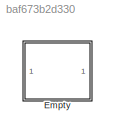
MODEL slx_baf673b2d330
KIND library
CONFIG AbsTol = auto
CONFIG EnableMultiTasking = off
CONFIG FixedStep = auto
CONFIG MaxStep = auto
CONFIG MinStep = auto
CONFIG RelTol = 1e-3
CONFIG SampleTimeConstraint = Unconstrained
CONFIG SolverName = VariableStepAuto
CONFIG StartTime = 0.0
CONFIG StopTime = 10.0
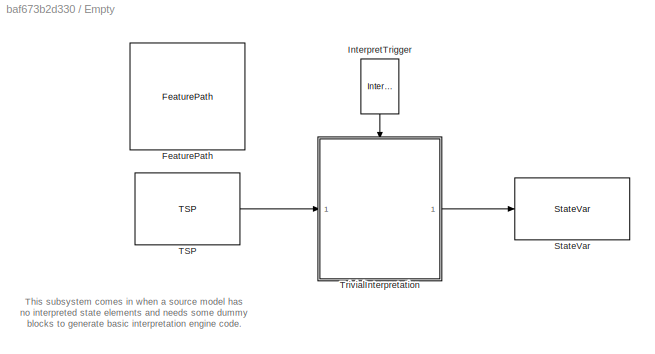
BLOCK [SubSystem] Empty
BLOCK [Reference] Empty/FeaturePath  REF=FeaturePath/FeaturePath
  SourceBlock = FeaturePath/FeaturePath
  SourceProductName = Bose Talaria
  SourceType = Talaria Feature Path
BLOCK [Reference] Empty/InterpretTrigger  REF=StateVar/InterpretTrigger
  NameLocation = left
  SourceBlock = StateVar/InterpretTrigger
  SourceProductName = Bose Talaria
  SourceType = Talaria Interpret Trigger
BLOCK [Reference] Empty/StateVar  REF=StateVar/StateVar
  SourceBlock = StateVar/StateVar
  SourceProductName = Bose Talaria
  SourceType = Talaria State Variable
BLOCK [Reference] Empty/TSP  REF=TSP/TSP
  SourceBlock = TSP/TSP
  SourceProductName = Bose Talaria
  SourceType = Talaria Target State Probe
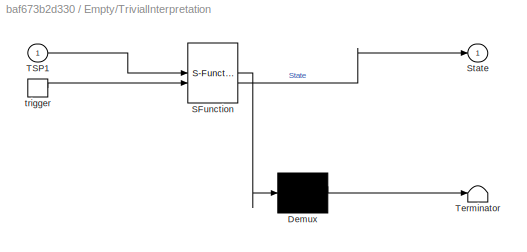
BLOCK [SubSystem] Empty/TrivialInterpretation
  ErrorFcn = Stateflow.Translate.translate
  PermitHierarchicalResolution = ExplicitOnly
  SFBlockType = MATLAB Function
  TreatAsAtomicUnit = on
BLOCK [Demux] Empty/TrivialInterpretation/ Demux 
  Outputs = 1
BLOCK [S-Function] Empty/TrivialInterpretation/ SFunction 
  EnableBusSupport = off
  FunctionName = sf_sfun
  PortCounts = [2 2]
  SFcnIsStateOwnerBlock = off
  SFunctionDeploymentMode = off
  Tag = Stateflow S-Function 8
BLOCK [Terminator] Empty/TrivialInterpretation/ Terminator 
BLOCK [Outport] Empty/TrivialInterpretation/State
  VectorParamsAs1DForOutWhenUnconnected = off
BLOCK [Inport] Empty/TrivialInterpretation/TSP1
BLOCK [TriggerPort] Empty/TrivialInterpretation/trigger
  ShowOutputPort = on
  StatesWhenEnabling = held
  TriggerType = function-call
  VariantControl = Variant
ANNOTATION Empty: This subsystem comes in when a source model has no interpreted state elements and needs some dummy blocks to generate basic interpretation engine code.
LINE Empty/InterpretTrigger:1 -> Empty/TrivialInterpretation:trigger
LINE Empty/TSP:1 -> Empty/TrivialInterpretation:1
LINE Empty/TrivialInterpretation:1 -> Empty/StateVar:1
CHART Empty/TrivialInterpretation states=1 transitions=1
  STATE_LABEL 'eML_blk_kernel()'
  STATE_LABEL 'SCRIPT:\nfunction State  = fcn(TSP1)\n%#codegen\n\n% Use one or more input Targe State Probes (TSP) or Captured State\n% Constants to calculate an output state value that feeds into a StateVar\n% block. Unlike tune translation code, this state interpretation code does\n% not support variable size inputs - TSPs each have a fixed size. As a\n% result, the input signals are just normal signal values that do ...<+324ch>'
CHART  states=0 transitions=0
